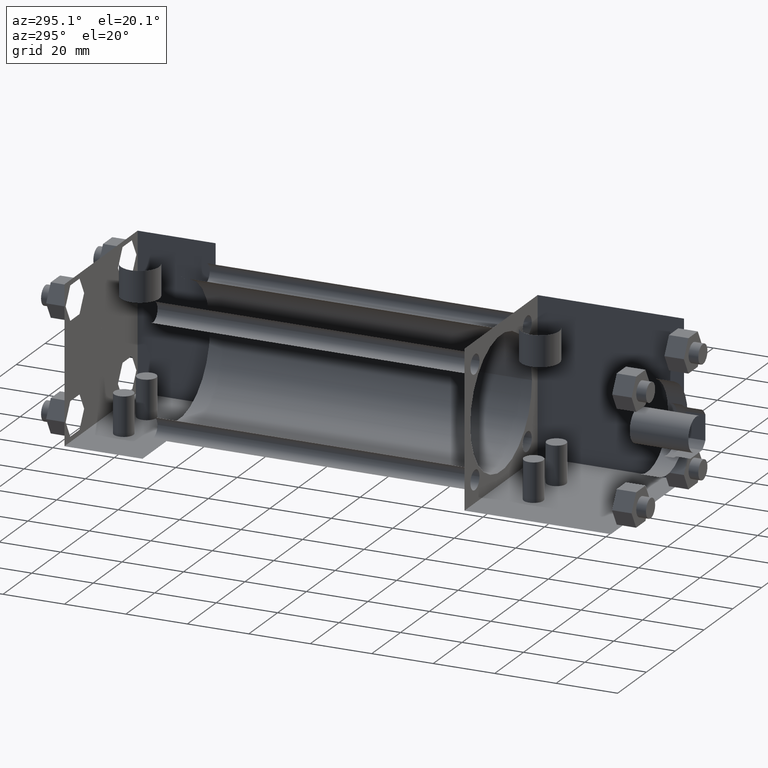
[diagram: clean part render]
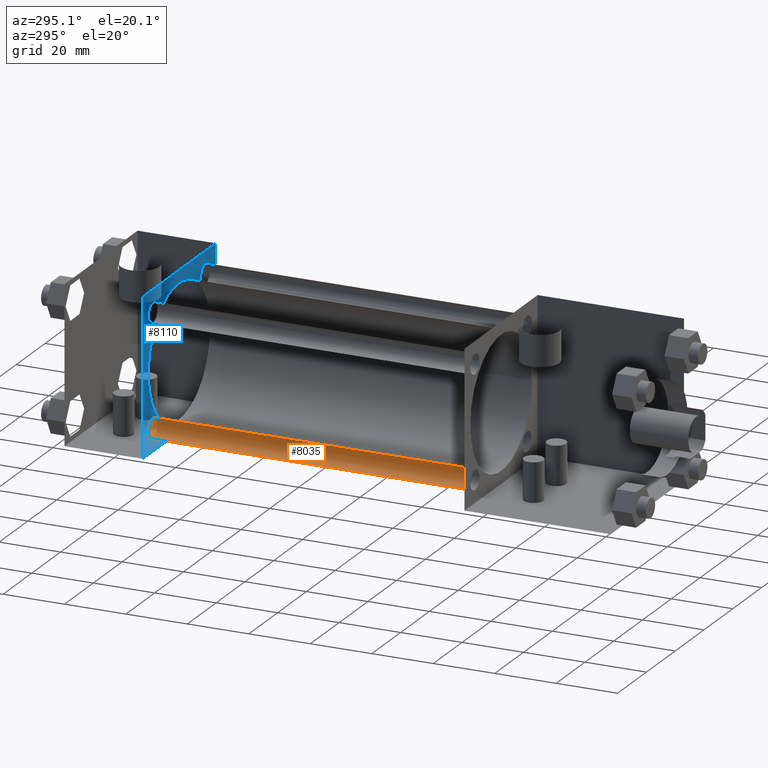
[diagram: same view with the hole feature highlighted: cylindrical wall and planar end face, labeled with their STEP entity ids]
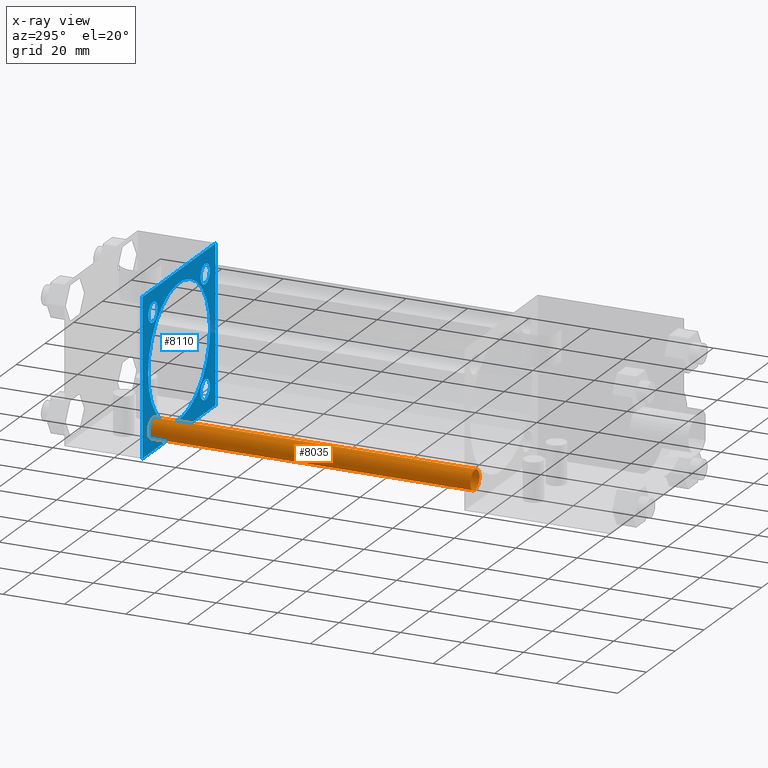
[diagram: x-ray of the same camera — body ghosted, the hole faces saturated]
A machine part, auxiliary view. The highlighted faces form one hole feature of diameter 6.35 mm: the cylindrical wall (entity #8035, orange) and its adjacent planar end face (entity #8110, blue) — they share a circular edge in the B-rep.
The next image is the same camera in x-ray (body ghosted, the hole faces saturated) — the bore reads through the body.
Wall:
#482=EDGE_CURVE('',#488,#488,#483,.T.);
#483=CIRCLE('',#484,3.175000000E+000);
#484=AXIS2_PLACEMENT_3D('',#485,#486,#487);
#485=CARTESIAN_POINT('',(-1.816100000E+001,6.350000000E+001,-1.816100000E+001));
#486=DIRECTION('',(0.0E+000,1.0E+000,0.0E+000));
#487=DIRECTION('',(-1.0E+000,0.0E+000,0.0E+000));
#488=VERTEX_POINT('',#489);
#489=CARTESIAN_POINT('',(-1.498600000E+001,6.350000000E+001,-1.816100000E+001));
#2163=FACE_OUTER_BOUND('',#2165,.T.);
#2164=FACE_BOUND('',#2166,.T.);
#2165=EDGE_LOOP('',(#2167));
#2166=EDGE_LOOP('',(#2168));
#2167=ORIENTED_EDGE('',*,*,#2212,.F.);
#2168=ORIENTED_EDGE('',*,*,#482,.T.);
#2169=CYLINDRICAL_SURFACE('',#2170,3.175000000E+000);
#2170=AXIS2_PLACEMENT_3D('',#2171,#2172,#2173);
#2171=CARTESIAN_POINT('',(-1.816100000E+001,1.682750000E+002,-1.816100000E+001));
#2172=DIRECTION('',(0.0E+000,-1.0E+000,0.0E+000));
#2173=DIRECTION('',(0.0E+000,0.0E+000,-1.0E+000));
#2212=EDGE_CURVE('',#2218,#2218,#2213,.T.);
#2213=CIRCLE('',#2214,3.175000000E+000);
#2214=AXIS2_PLACEMENT_3D('',#2215,#2216,#2217);
#2215=CARTESIAN_POINT('',(-1.816100000E+001,1.682750000E+002,-1.816100000E+001));
#2216=DIRECTION('',(0.0E+000,1.0E+000,0.0E+000));
#2217=DIRECTION('',(1.0E+000,0.0E+000,0.0E+000));
#2218=VERTEX_POINT('',#2219);
#2219=CARTESIAN_POINT('',(-1.498600000E+001,1.682750000E+002,-1.816100000E+001));
#8035=ADVANCED_FACE('',(#2163,#2164),#2169,.T.);
End face:
#2122=EDGE_CURVE('',#2128,#2128,#2123,.T.);
#2123=CIRCLE('',#2124,2.146300000E+001);
#2124=AXIS2_PLACEMENT_3D('',#2125,#2126,#2127);
#2125=CARTESIAN_POINT('',(0.000000000E+000,1.682750000E+002,0.000000000E+000));
#2126=DIRECTION('',(0.0E+000,1.0E+000,0.0E+000));
#2127=DIRECTION('',(1.0E+000,0.0E+000,0.0E+000));
#2128=VERTEX_POINT('',#2129);
#2129=CARTESIAN_POINT('',(2.146300000E+001,1.682750000E+002,0.000000000E+000));
#2204=EDGE_CURVE('',#2210,#2210,#2205,.T.);
#2205=CIRCLE('',#2206,3.175000000E+000);
#2206=AXIS2_PLACEMENT_3D('',#2207,#2208,#2209);
#2207=CARTESIAN_POINT('',(1.816100000E+001,1.682750000E+002,1.816100000E+001));
#2208=DIRECTION('',(0.0E+000,-1.0E+000,0.0E+000));
#2209=DIRECTION('',(-1.0E+000,0.0E+000,0.0E+000));
#2210=VERTEX_POINT('',#2211);
#2211=CARTESIAN_POINT('',(1.498600000E+001,1.682750000E+002,1.816100000E+001));
#2212=EDGE_CURVE('',#2218,#2218,#2213,.T.);
#2213=CIRCLE('',#2214,3.175000000E+000);
#2214=AXIS2_PLACEMENT_3D('',#2215,#2216,#2217);
#2215=CARTESIAN_POINT('',(-1.816100000E+001,1.682750000E+002,-1.816100000E+001));
#2216=DIRECTION('',(0.0E+000,1.0E+000,0.0E+000));
#2217=DIRECTION('',(1.0E+000,0.0E+000,0.0E+000));
#2218=VERTEX_POINT('',#2219);
#2219=CARTESIAN_POINT('',(-1.498600000E+001,1.682750000E+002,-1.816100000E+001));
#2228=EDGE_CURVE('',#2234,#2234,#2229,.T.);
#2229=CIRCLE('',#2230,3.175000000E+000);
#2230=AXIS2_PLACEMENT_3D('',#2231,#2232,#2233);
#2231=CARTESIAN_POINT('',(1.816100000E+001,1.682750000E+002,-1.816100000E+001));
#2232=DIRECTION('',(0.0E+000,1.0E+000,0.0E+000));
#2233=DIRECTION('',(1.0E+000,0.0E+000,0.0E+000));
#2234=VERTEX_POINT('',#2235);
#2235=CARTESIAN_POINT('',(2.133600000E+001,1.682750000E+002,-1.816100000E+001));
#2244=EDGE_CURVE('',#2250,#2250,#2245,.T.);
#2245=CIRCLE('',#2246,3.175000000E+000);
#2246=AXIS2_PLACEMENT_3D('',#2247,#2248,#2249);
#2247=CARTESIAN_POINT('',(-1.816100000E+001,1.682750000E+002,1.816100000E+001));
#2248=DIRECTION('',(0.0E+000,1.0E+000,0.0E+000));
#2249=DIRECTION('',(1.0E+000,0.0E+000,0.0E+000));
#2250=VERTEX_POINT('',#2251);
#2251=CARTESIAN_POINT('',(-1.498600000E+001,1.682750000E+002,1.816100000E+001));
#4139=FACE_OUTER_BOUND('',#4145,.T.);
#4140=FACE_BOUND('',#4146,.T.);
#4141=FACE_BOUND('',#4147,.T.);
#4142=FACE_BOUND('',#4148,.T.);
#4143=FACE_BOUND('',#4149,.T.);
#4144=FACE_BOUND('',#4150,.T.);
#4145=EDGE_LOOP('',(#4151));
#4146=EDGE_LOOP('',(#4160));
#4147=EDGE_LOOP('',(#4169));
#4148=EDGE_LOOP('',(#4178,#4179,#4180,#4181));
#4149=EDGE_LOOP('',(#4210));
#4150=EDGE_LOOP('',(#4219));
#4151=ORIENTED_EDGE('',*,*,#2204,.T.);
#4160=ORIENTED_EDGE('',*,*,#2228,.T.);
#4169=ORIENTED_EDGE('',*,*,#2212,.T.);
#4178=ORIENTED_EDGE('',*,*,#4182,.F.);
#4179=ORIENTED_EDGE('',*,*,#4191,.T.);
#4180=ORIENTED_EDGE('',*,*,#4198,.T.);
#4181=ORIENTED_EDGE('',*,*,#4205,.T.);
#4182=EDGE_CURVE('',#4187,#4188,#4183,.T.);
#4183=LINE('',#4184,#4185);
#4184=CARTESIAN_POINT('',(2.540000000E+001,1.682750000E+002,-2.540000000E+001));
#4185=VECTOR('',#4186,1.0E+000);
#4186=DIRECTION('',(-1.0E+000,0.0E+000,0.0E+000));
#4187=VERTEX_POINT('',#4189);
#4188=VERTEX_POINT('',#4190);
#4189=CARTESIAN_POINT('',(2.540000000E+001,1.682750000E+002,-2.540000000E+001));
#4190=CARTESIAN_POINT('',(-2.540000000E+001,1.682750000E+002,-2.540000000E+001));
#4191=EDGE_CURVE('',#4187,#4196,#4192,.T.);
#4192=LINE('',#4193,#4194);
#4193=CARTESIAN_POINT('',(2.540000000E+001,1.682750000E+002,-2.540000000E+001));
#4194=VECTOR('',#4195,1.0E+000);
#4195=DIRECTION('',(0.0E+000,0.0E+000,1.0E+000));
#4196=VERTEX_POINT('',#4197);
#4197=CARTESIAN_POINT('',(2.540000000E+001,1.682750000E+002,2.540000000E+001));
#4198=EDGE_CURVE('',#4196,#4203,#4199,.T.);
#4199=LINE('',#4200,#4201);
#4200=CARTESIAN_POINT('',(2.540000000E+001,1.682750000E+002,2.540000000E+001));
#4201=VECTOR('',#4202,1.0E+000);
#4202=DIRECTION('',(-1.0E+000,0.0E+000,0.0E+000));
#4203=VERTEX_POINT('',#4204);
#4204=CARTESIAN_POINT('',(-2.540000000E+001,1.682750000E+002,2.540000000E+001));
#4205=EDGE_CURVE('',#4203,#4188,#4206,.T.);
#4206=LINE('',#4207,#4208);
#4207=CARTESIAN_POINT('',(-2.540000000E+001,1.682750000E+002,2.540000000E+001));
#4208=VECTOR('',#4209,1.0E+000);
#4209=DIRECTION('',(0.0E+000,0.0E+000,-1.0E+000));
#4210=ORIENTED_EDGE('',*,*,#2244,.T.);
#4219=ORIENTED_EDGE('',*,*,#2122,.T.);
#4220=PLANE('',#4221);
#4221=AXIS2_PLACEMENT_3D('',#4222,#4223,#4224);
#4222=CARTESIAN_POINT('',(2.540000000E+001,1.682750000E+002,-2.540000000E+001));
#4223=DIRECTION('',(0.0E+000,-1.0E+000,0.0E+000));
#4224=DIRECTION('',(0.0E+000,0.0E+000,-1.0E+000));
#8110=ADVANCED_FACE('',(#4139,#4140,#4141,#4142,#4143,#4144),#4220,.T.);